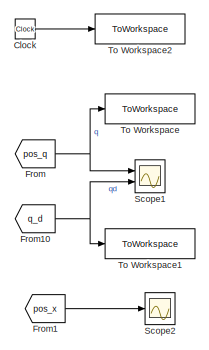
[diagram: root canvas - part 1/4, top right region]
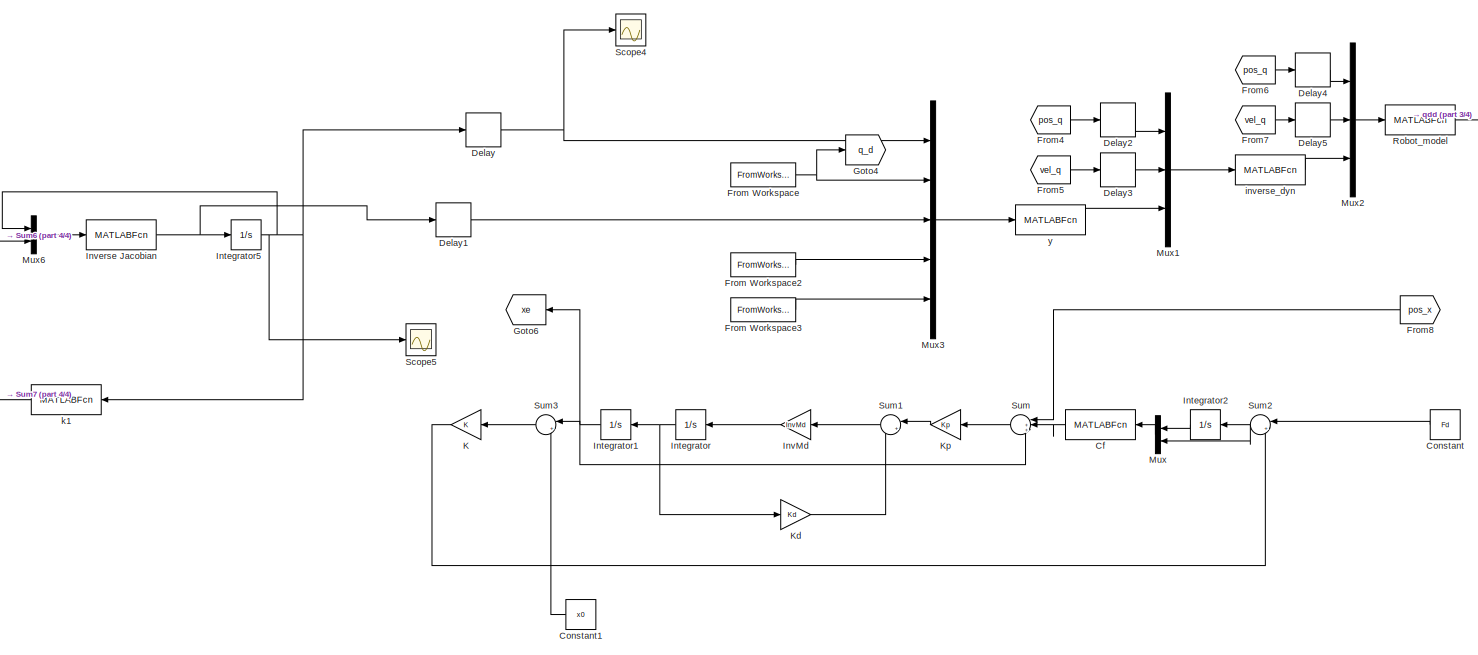
[diagram: root canvas - part 2/4, center side, full height]
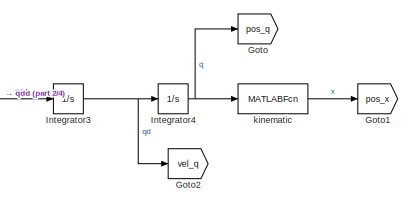
[diagram: root canvas - part 3/4, middle right region]
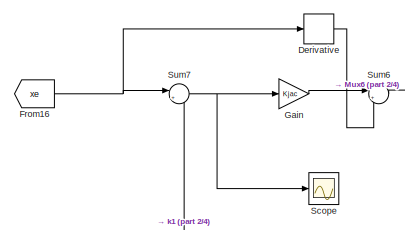
[diagram: root canvas - part 4/4, middle left region]
MODEL slx_49fc2576f8e4
KIND model
CONFIG AbsTol = 1e-2
CONFIG EnableMultiTasking = off
CONFIG FixedStep = 1e-3
CONFIG MaxStep = auto
CONFIG MinStep = auto
CONFIG RelTol = 1e-2
CONFIG SampleTimeConstraint = Unconstrained
CONFIG Solver = ode15s
CONFIG SolverName = ode15s
CONFIG StartTime = 0.0
CONFIG StopTime = 8
BLOCK [MATLABFcn] Cf
  MATLABFcn = Cf
  OutputDimensions = 6*1
  Ports = [1, 1]
BLOCK [Clock] Clock
  Decimation = 18
BLOCK [Constant] Constant
  Value = Fd
BLOCK [Constant] Constant1
  Value = x0
BLOCK [Delay] Delay
  DelayLength = 1
  InitialCondition = x0
  InputPortMap = u0
  Ports = [1, 1]
BLOCK [Delay] Delay1
  DelayLength = 1
  InputPortMap = u0
  Ports = [1, 1]
BLOCK [Delay] Delay2
  DelayLength = 1
  InitialCondition = qf
  InputPortMap = u0
  Ports = [1, 1]
BLOCK [Delay] Delay3
  DelayLength = 1
  InputPortMap = u0
  Ports = [1, 1]
BLOCK [Delay] Delay4
  DelayLength = 1
  InitialCondition = qf
  InputPortMap = u0
  Ports = [1, 1]
BLOCK [Delay] Delay5
  DelayLength = 1
  InputPortMap = u0
  Ports = [1, 1]
BLOCK [Derivative] Derivative
BLOCK [From] From
  GotoTag = pos_q
BLOCK [FromWorkspace] From Workspace
  VariableName = [tt' qd]
BLOCK [FromWorkspace] From Workspace2
  VariableName = [tt' dqd]
BLOCK [FromWorkspace] From Workspace3
  VariableName = [tt' ddqd]
BLOCK [From] From1
  GotoTag = pos_x
BLOCK [From] From10
  GotoTag = q_d
BLOCK [From] From16
  GotoTag = xe
BLOCK [From] From4
  GotoTag = pos_q
BLOCK [From] From5
  GotoTag = vel_q
BLOCK [From] From6
  GotoTag = pos_q
BLOCK [From] From7
  GotoTag = vel_q
BLOCK [From] From8
  GotoTag = pos_x
BLOCK [Gain] Gain
  Gain = Kjac
  Multiplication = Matrix(K*u)
BLOCK [Goto] Goto
  GotoTag = pos_q
BLOCK [Goto] Goto1
  GotoTag = pos_x
BLOCK [Goto] Goto2
  GotoTag = vel_q
BLOCK [Goto] Goto4
  GotoTag = q_d
BLOCK [Goto] Goto6
  GotoTag = xe
BLOCK [Integrator] Integrator
  Ports = [1, 1]
BLOCK [Integrator] Integrator1
  InitialCondition = x0
  Ports = [1, 1]
BLOCK [Integrator] Integrator2
  Ports = [1, 1]
BLOCK [Integrator] Integrator3
  Ports = [1, 1]
BLOCK [Integrator] Integrator4
  InitialCondition = qf
  Ports = [1, 1]
BLOCK [Integrator] Integrator5
  InitialCondition = qf
  Ports = [1, 1]
BLOCK [Gain] InvMd
  Gain = InvMd
  Multiplication = Matrix(K*u)
BLOCK [MATLABFcn] Inverse Jacobian
  MATLABFcn = Inverse_Jac
  OutputDimensions = 6*1
  Ports = [1, 1]
BLOCK [Gain] K
  Gain = K
  Multiplication = Matrix(K*u)
BLOCK [Gain] Kd
  Gain = Kd
  Multiplication = Matrix(K*u)
BLOCK [Gain] Kp
  Gain = Kp
  Multiplication = Matrix(K*u)
BLOCK [Mux] Mux
  DisplayOption = bar
  Inputs = 2
  Ports = [2, 1]
BLOCK [Mux] Mux1
  DisplayOption = bar
  Inputs = [6 6 6]
  Ports = [3, 1]
BLOCK [Mux] Mux2
  DisplayOption = bar
  Inputs = [6 6 6]
  Ports = [3, 1]
BLOCK [Mux] Mux3
  DisplayOption = bar
  Inputs = [6 6 6 6 6]
  Ports = [5, 1]
BLOCK [Mux] Mux6
  DisplayOption = bar
  Inputs = [6 6]
  Ports = [2, 1]
BLOCK [MATLABFcn] Robot_model
  MATLABFcn = Abb_model_matrix
  OutputDimensions = 6
  Ports = [1, 1]
BLOCK [Scope] Scope
  Floating = off
  NumInputPorts = 1
  Ports = [1]
  ScopeSpecificationString = Simulink.scopes.TimeScopeBlockCfg('CurrentConfiguration', extmgr.ConfigurationSet(extmgr.Configuration('Core','General UI',true),extmgr.Configuration('Core','Source UI',true),extmgr.Configuration('Sources','WiredSimulink',true,'DataLoggingVariableName','ScopeData1'),extmgr.Configuration('Visuals','Time Domain',true,'SerializedDisplays',{struct('MinYLimReal','-0.17398','MaxYLimReal','0.14402','YLab...<+1437ch>
BLOCK [Scope] Scope1
  Floating = off
  NumInputPorts = 2
  Ports = [2]
  ScopeSpecificationString = Simulink.scopes.TimeScopeBlockCfg('CurrentConfiguration', extmgr.ConfigurationSet(extmgr.Configuration('Core','General UI',true),extmgr.Configuration('Core','Source UI',true),extmgr.Configuration('Sources','WiredSimulink',true,'DataLoggingVariableName','ScopeData1'),extmgr.Configuration('Visuals','Time Domain',true,'SerializedDisplays',{struct('MinYLimReal','-215515.00152','MaxYLimReal','246128.50...<+1811ch>
BLOCK [Scope] Scope2
  Floating = off
  NumInputPorts = 1
  Ports = [1]
  ScopeSpecificationString = Simulink.scopes.TimeScopeBlockCfg('CurrentConfiguration', extmgr.ConfigurationSet(extmgr.Configuration('Core','General UI',true),extmgr.Configuration('Core','Source UI',true),extmgr.Configuration('Sources','WiredSimulink',true,'DataLoggingVariableName','ScopeData2'),extmgr.Configuration('Visuals','Time Domain',true,'SerializedDisplays',{struct('MinYLimReal','-3.92353','MaxYLimReal','3.92309','YLab...<+1617ch>
BLOCK [Scope] Scope4
  Floating = off
  NumInputPorts = 1
  Ports = [1]
  ScopeSpecificationString = Simulink.scopes.TimeScopeBlockCfg('CurrentConfiguration', extmgr.ConfigurationSet(extmgr.Configuration('Core','General UI',true),extmgr.Configuration('Core','Source UI',true),extmgr.Configuration('Sources','WiredSimulink',true,'DataLoggingVariableName','ScopeData3'),extmgr.Configuration('Visuals','Time Domain',true,'SerializedDisplays',{struct('MinYLimReal','-4.02552','MaxYLimReal','6.67195','YLab...<+1416ch>
BLOCK [Scope] Scope5
  Floating = off
  NumInputPorts = 1
  Ports = [1]
  ScopeSpecificationString = Simulink.scopes.TimeScopeBlockCfg('CurrentConfiguration', extmgr.ConfigurationSet(extmgr.Configuration('Core','General UI',true),extmgr.Configuration('Core','Source UI',true),extmgr.Configuration('Sources','WiredSimulink',true,'DataLoggingVariableName','ScopeData4'),extmgr.Configuration('Visuals','Time Domain',true,'SerializedDisplays',{struct('MinYLimReal','-3.9865','MaxYLimReal','6.68892','YLabe...<+1477ch>
BLOCK [Sum] Sum
  Inputs = |++-
  Ports = [3, 1]
BLOCK [Sum] Sum1
  Inputs = |+-
  Ports = [2, 1]
BLOCK [Sum] Sum2
  Inputs = |+-
  Ports = [2, 1]
BLOCK [Sum] Sum3
  Inputs = |+-
  Ports = [2, 1]
BLOCK [Sum] Sum6
  Inputs = |++
  Ports = [2, 1]
BLOCK [Sum] Sum7
  Inputs = |+-
  Ports = [2, 1]
BLOCK [ToWorkspace] To Workspace
  FixptAsFi = on
  MaxDataPoints = inf
  Ports = [1]
  SampleTime = -1
  VariableName = pos_r
BLOCK [ToWorkspace] To Workspace1
  FixptAsFi = on
  MaxDataPoints = inf
  Ports = [1]
  SampleTime = -1
  VariableName = pos_r_d
BLOCK [ToWorkspace] To Workspace2
  FixptAsFi = on
  MaxDataPoints = inf
  Ports = [1]
  SampleTime = -1
  VariableName = time
BLOCK [MATLABFcn] inverse_dyn
  MATLABFcn = inv_dyn
  OutputDimensions = 6
  Ports = [1, 1]
BLOCK [MATLABFcn] k1
  MATLABFcn = dir_kin
  Ports = [1, 1]
BLOCK [MATLABFcn] kinematic
  MATLABFcn = dir_kin
  Ports = [1, 1]
BLOCK [MATLABFcn] y
  MATLABFcn = aux_y
  Ports = [1, 1]
LINE Cf:1 -> Sum:2
LINE Clock:1 -> To Workspace2:1
LINE Constant1:1 -> Sum3:2
LINE Constant:1 -> Sum2:1
LINE Delay1:1 -> Mux3:3
LINE Delay2:1 -> Mux1:1
LINE Delay3:1 -> Mux1:2
LINE Delay4:1 -> Mux2:1
LINE Delay5:1 -> Mux2:2
NET Delay:1 -> Mux3:1, Scope4:1
LINE Derivative:1 -> Sum6:2
LINE From Workspace2:1 -> Mux3:4
LINE From Workspace3:1 -> Mux3:5
NET From Workspace:1 -> Goto4:1, Mux3:2
NET From10:1 -> Scope1:2, To Workspace1:1
NET From16:1 -> Derivative:1, Sum7:1
LINE From1:1 -> Scope2:1
LINE From4:1 -> Delay2:1
LINE From5:1 -> Delay3:1
LINE From6:1 -> Delay4:1
LINE From7:1 -> Delay5:1
LINE From8:1 -> Sum:1
NET From:1 -> Scope1:1, To Workspace:1
LINE Gain:1 -> Sum6:1
NET Integrator1:1 -> Goto6:1, Sum3:1, Sum:3
LINE Integrator2:1 -> Mux:1
NET Integrator3:1 -> Goto2:1, Integrator4:1
NET Integrator4:1 -> Goto:1, kinematic:1
NET Integrator5:1 -> Delay:1, Mux6:1, Scope5:1, k1:1
NET Integrator:1 -> Integrator1:1, Kd:1
LINE InvMd:1 -> Integrator:1
NET Inverse Jacobian:1 -> Delay1:1, Integrator5:1
LINE K:1 -> Sum2:2
LINE Kd:1 -> Sum1:2
LINE Kp:1 -> Sum1:1
LINE Mux1:1 -> inverse_dyn:1
LINE Mux2:1 -> Robot_model:1
LINE Mux3:1 -> y:1
LINE Mux6:1 -> Inverse Jacobian:1
LINE Mux:1 -> Cf:1
LINE Robot_model:1 -> Integrator3:1
LINE Sum1:1 -> InvMd:1
NET Sum2:1 -> Integrator2:1, Mux:2
LINE Sum3:1 -> K:1
LINE Sum6:1 -> Mux6:2
NET Sum7:1 -> Gain:1, Scope:1
LINE Sum:1 -> Kp:1
LINE inverse_dyn:1 -> Mux2:3
LINE k1:1 -> Sum7:2
LINE kinematic:1 -> Goto1:1
LINE y:1 -> Mux1:3
note: NET lines group one-source signal fan-out (src -> all destinations, sorted); 1:1 wires keep LINE
